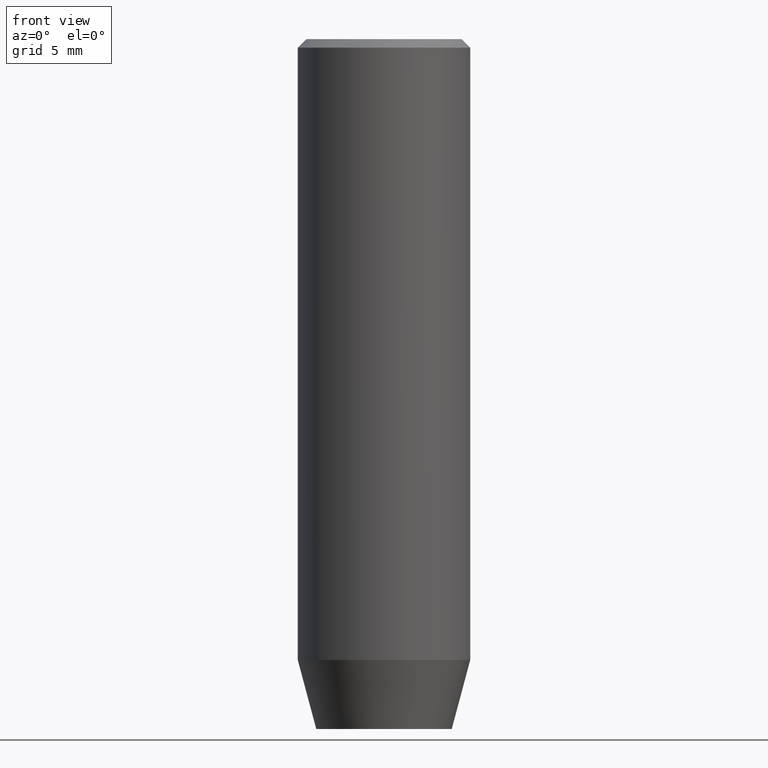
[diagram: clean part render]
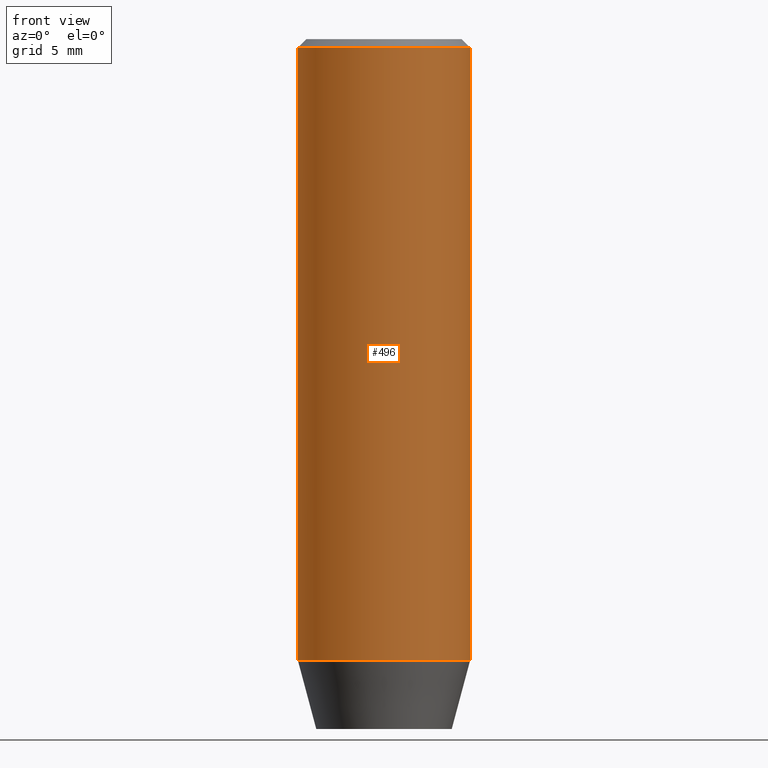
[diagram: same view with one face highlighted and labeled with its STEP entity id]
A machine part, front view. The second image highlights one B-rep face of the part: STEP entity #496.
In plain terms, the highlighted cylindrical surface (partial cylindrical patch) has radius 5 mm, axis along (-0, -0, 1).
Its self-contained STEP definition (entity closure, byte-faithful):
#5 = ORIENTED_EDGE ( 'NONE', *, *, #272, .F. ) ;
#9 = AXIS2_PLACEMENT_3D ( 'NONE', #508, #333, #50 ) ;
#37 = VERTEX_POINT ( 'NONE', #323 ) ;
#50 = DIRECTION ( 'NONE',  ( 1.000000000000000000, 0.000000000000000000, 0.000000000000000000 ) ) ;
#78 = VECTOR ( 'NONE', #492, 1000.000000000000000 ) ;
#84 = DIRECTION ( 'NONE',  ( -0.000000000000000000, -0.000000000000000000, 1.000000000000000000 ) ) ;
#110 = DIRECTION ( 'NONE',  ( 0.000000000000000000, 0.000000000000000000, -1.000000000000000000 ) ) ;
#115 = VECTOR ( 'NONE', #84, 1000.000000000000000 ) ;
#121 = CARTESIAN_POINT ( 'NONE',  ( 0.000000000000000000, 0.000000000000000000, -36.00000000000000711 ) ) ;
#124 = CYLINDRICAL_SURFACE ( 'NONE', #9, 5.000000000000000888 ) ;
#139 = ORIENTED_EDGE ( 'NONE', *, *, #418, .T. ) ;
#152 = FACE_OUTER_BOUND ( 'NONE', #168, .T. ) ;
#168 = EDGE_LOOP ( 'NONE', ( #5, #139, #264, #215 ) ) ;
#187 = CARTESIAN_POINT ( 'NONE',  ( -5.000000000000000888, 6.123233995736767268E-16, -0.4999999999999935052 ) ) ;
#203 = AXIS2_PLACEMENT_3D ( 'NONE', #121, #539, #471 ) ;
#215 = ORIENTED_EDGE ( 'NONE', *, *, #542, .T. ) ;
#216 = VERTEX_POINT ( 'NONE', #428 ) ;
#219 = CIRCLE ( 'NONE', #203, 5.000000000000000888 ) ;
#223 = EDGE_CURVE ( 'NONE', #216, #581, #259, .T. ) ;
#257 = CARTESIAN_POINT ( 'NONE',  ( -5.000000000000000888, 6.123233995736767268E-16, 0.000000000000000000 ) ) ;
#259 = LINE ( 'NONE', #480, #78 ) ;
#264 = ORIENTED_EDGE ( 'NONE', *, *, #223, .T. ) ;
#272 = EDGE_CURVE ( 'NONE', #37, #580, #300, .T. ) ;
#300 = LINE ( 'NONE', #257, #115 ) ;
#323 = CARTESIAN_POINT ( 'NONE',  ( -5.000000000000000888, 6.123233995736767268E-16, -36.00000000000000711 ) ) ;
#333 = DIRECTION ( 'NONE',  ( -0.000000000000000000, -0.000000000000000000, 1.000000000000000000 ) ) ;
#395 = DIRECTION ( 'NONE',  ( 1.000000000000000000, 0.000000000000000000, 0.000000000000000000 ) ) ;
#418 = EDGE_CURVE ( 'NONE', #37, #216, #219, .T. ) ;
#428 = CARTESIAN_POINT ( 'NONE',  ( 5.000000000000000888, 0.000000000000000000, -36.00000000000000711 ) ) ;
#471 = DIRECTION ( 'NONE',  ( 1.000000000000000000, 0.000000000000000000, 0.000000000000000000 ) ) ;
#480 = CARTESIAN_POINT ( 'NONE',  ( 5.000000000000000888, 0.000000000000000000, 0.000000000000000000 ) ) ;
#484 = CARTESIAN_POINT ( 'NONE',  ( 0.000000000000000000, 0.000000000000000000, -0.4999999999999935052 ) ) ;
#492 = DIRECTION ( 'NONE',  ( -0.000000000000000000, -0.000000000000000000, 1.000000000000000000 ) ) ;
#496 = ADVANCED_FACE ( 'NONE', ( #152 ), #124, .T. ) ;
#503 = CARTESIAN_POINT ( 'NONE',  ( 5.000000000000000888, 0.000000000000000000, -0.4999999999999935052 ) ) ;
#508 = CARTESIAN_POINT ( 'NONE',  ( 0.000000000000000000, 0.000000000000000000, 0.000000000000000000 ) ) ;
#537 = CIRCLE ( 'NONE', #586, 5.000000000000000888 ) ;
#539 = DIRECTION ( 'NONE',  ( -0.000000000000000000, -0.000000000000000000, 1.000000000000000000 ) ) ;
#542 = EDGE_CURVE ( 'NONE', #581, #580, #537, .T. ) ;
#580 = VERTEX_POINT ( 'NONE', #187 ) ;
#581 = VERTEX_POINT ( 'NONE', #503 ) ;
#586 = AXIS2_PLACEMENT_3D ( 'NONE', #484, #110, #395 ) ;